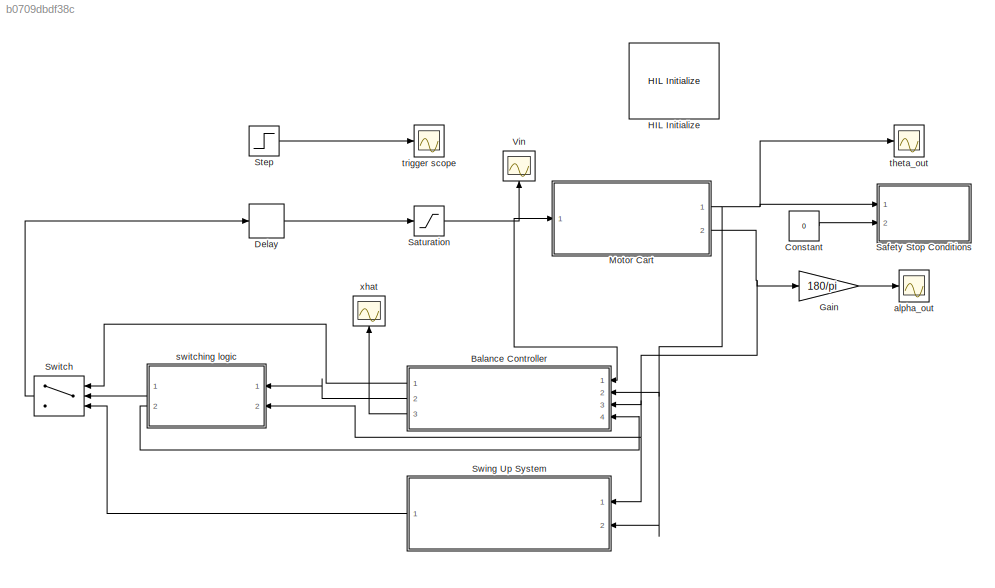
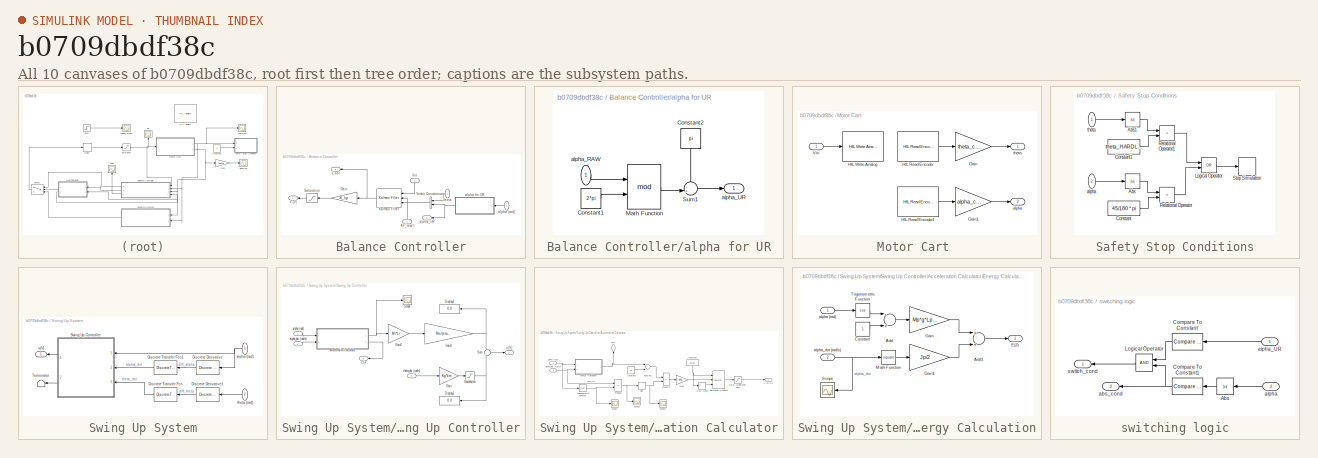
[diagram: thumbnail index - all 10 canvases of the model, root first then tree order]
MODEL slx_b0709dbdf38c
KIND model
CONFIG AbsTol = auto
CONFIG FixedStep = T
CONFIG MaxStep = auto
CONFIG MinStep = auto
CONFIG RelTol = 1e-3
CONFIG SampleTimeConstraint = Unconstrained
CONFIG Solver = FixedStepDiscrete
CONFIG SolverMode = Auto
CONFIG SolverName = FixedStepDiscrete
CONFIG StartTime = 0.0
CONFIG StopTime = tstop
BLOCK [SubSystem] Balance Controller
  Ports = [4, 3]
  RequestExecContextInheritance = off
  Variant = off
BLOCK [Gain] Balance Controller/Gain
  Gain = -K_lqr
  Multiplication = Matrix(K*u)
  OutDataTypeStr = Inherit: Inherit via internal rule
  ParamDataTypeStr = Inherit: Inherit via internal rule
  SaturateOnIntegerOverflow = off
BLOCK [Inport] Balance Controller/KF_reset 
  IconDisplay = Port number
  Port = 4
BLOCK [Reference] Balance Controller/Kalman Filter  REF=ctrlSharedLib/Kalman Filter
  Ports = [3, 1]
  SourceBlock = ctrlSharedLib/Kalman Filter
  SourceType = ctrlKalmanFilter
BLOCK [Saturate] Balance Controller/Saturation
  InputPortMap = u0
  LowerLimit = -Vin_HARDLIM
  Ports = [1, 1]
  UpperLimit = Vin_HARDLIM
BLOCK [Concatenate] Balance Controller/Vector Concatenate
  Ports = [2, 1]
BLOCK [Inport] Balance Controller/Vin
  IconDisplay = Port number
BLOCK [Inport] Balance Controller/alpha (rad)
  IconDisplay = Port number
  Port = 3
BLOCK [SubSystem] Balance Controller/alpha for UR
  Ports = [1, 1]
  RequestExecContextInheritance = off
  Variant = off
BLOCK [Constant] Balance Controller/alpha for UR/Constant1
  Value = 2*pi
BLOCK [Constant] Balance Controller/alpha for UR/Constant2
  Value = pi
BLOCK [Math] Balance Controller/alpha for UR/Math Function
  Operator = mod
  Ports = [2, 1]
BLOCK [Sum] Balance Controller/alpha for UR/Sum1
  IconShape = round
  InputSameDT = off
  Inputs = -+|
  OutDataTypeStr = Inherit: Inherit via internal rule
  Ports = [2, 1]
  SaturateOnIntegerOverflow = off
BLOCK [Inport] Balance Controller/alpha for UR/alpha_RAW
  IconDisplay = Port number
BLOCK [Outport] Balance Controller/alpha for UR/alpha_UR
  IconDisplay = Port number
BLOCK [Outport] Balance Controller/alpha_UR
  IconDisplay = Port number
  Port = 2
BLOCK [Inport] Balance Controller/theta
  IconDisplay = Port number
  Port = 2
BLOCK [Outport] Balance Controller/u (V)
  IconDisplay = Port number
BLOCK [Outport] Balance Controller/x_hat
  IconDisplay = Port number
  Port = 3
BLOCK [Constant] Constant
  Value = 0
BLOCK [Delay] Delay
  DelayLength = 1
  InitialCondition = 0
  InputPortMap = u0
  Ports = [1, 1]
BLOCK [Gain] Gain
  Gain = 180/pi
  OutDataTypeStr = Inherit: Inherit via internal rule
  ParamDataTypeStr = Inherit: Inherit via internal rule
  SaturateOnIntegerOverflow = off
BLOCK [Reference] HIL Initialize  REF=quarc_library/Data Acquisition/Generic/Configuration/HIL Initialize
  AttributesFormatString = %<object_name> (%<board_type>-%<board_number>)
  Ports = []
  SourceBlock = quarc_library/Data Acquisition/Generic/Configuration/HIL Initialize
  SourceType = HIL Initialize
  UserDataPersistent = on
BLOCK [SubSystem] Motor Cart 
  Ports = [1, 2]
  RequestExecContextInheritance = off
  Variant = off
BLOCK [Gain] Motor Cart /Gain
  Gain = theta_cal
  OutDataTypeStr = Inherit: Inherit via internal rule
  ParamDataTypeStr = Inherit: Inherit via internal rule
  SaturateOnIntegerOverflow = off
BLOCK [Gain] Motor Cart /Gain1
  Gain = alpha_cal
  OutDataTypeStr = Inherit: Inherit via internal rule
  ParamDataTypeStr = Inherit: Inherit via internal rule
  SaturateOnIntegerOverflow = off
BLOCK [Reference] Motor Cart /HIL Read Encoder  REF=quarc_library/Data Acquisition/Generic/Immediate I//O/HIL Read Encoder
  AttributesFormatString = (%<object_name>)
  Ports = [0, 1]
  SourceBlock = quarc_library/Data Acquisition/Generic/Immediate I//O/HIL Read Encoder
  SourceType = HIL Read Encoder
  UserDataPersistent = on
BLOCK [Reference] Motor Cart /HIL Read Encoder1  REF=quarc_library/Data Acquisition/Generic/Immediate I//O/HIL Read Encoder
  AttributesFormatString = (%<object_name>)
  Ports = [0, 1]
  SourceBlock = quarc_library/Data Acquisition/Generic/Immediate I//O/HIL Read Encoder
  SourceType = HIL Read Encoder
  UserDataPersistent = on
BLOCK [Reference] Motor Cart /HIL Write Analog  REF=quarc_library/Data Acquisition/Generic/Immediate I//O/HIL Write Analog
  AttributesFormatString = (%<object_name>)
  Ports = [1]
  SourceBlock = quarc_library/Data Acquisition/Generic/Immediate I//O/HIL Write Analog
  SourceType = HIL Write Analog
  UserDataPersistent = on
BLOCK [Inport] Motor Cart /Vin
  IconDisplay = Port number
BLOCK [Outport] Motor Cart /alpha
  IconDisplay = Port number
  Port = 2
BLOCK [Outport] Motor Cart /theta
  IconDisplay = Port number
BLOCK [SubSystem] Safety Stop Conditions
  Ports = [2]
  RequestExecContextInheritance = off
  Variant = off
BLOCK [Abs] Safety Stop Conditions/Abs
  SaturateOnIntegerOverflow = off
BLOCK [Abs] Safety Stop Conditions/Abs1
  SaturateOnIntegerOverflow = off
BLOCK [Constant] Safety Stop Conditions/Constant
  Value = 45/180 * pi
BLOCK [Constant] Safety Stop Conditions/Constant1
  Value = theta_HARDLIM
BLOCK [Logic] Safety Stop Conditions/Logical Operator
  AllPortsSameDT = off
  Operator = OR
  OutDataTypeStr = boolean
  Ports = [2, 1]
BLOCK [RelationalOperator] Safety Stop Conditions/Relational Operator
  InputSameDT = off
  Operator = >
  OutDataTypeStr = boolean
  Ports = [2, 1]
BLOCK [RelationalOperator] Safety Stop Conditions/Relational Operator1
  InputSameDT = off
  Operator = >
  OutDataTypeStr = boolean
  Ports = [2, 1]
BLOCK [Stop] Safety Stop Conditions/Stop Simulation
BLOCK [Inport] Safety Stop Conditions/alpha
  IconDisplay = Port number
  Port = 2
BLOCK [Inport] Safety Stop Conditions/theta
  IconDisplay = Port number
BLOCK [Saturate] Saturation
  InputPortMap = u0
  LowerLimit = -Vin_HARDLIM
  Ports = [1, 1]
  UpperLimit = Vin_HARDLIM
BLOCK [Step] Step
  SampleTime = 0
  Time = 0.001
BLOCK [SubSystem] Swing Up System
  Ports = [2, 1]
  RequestExecContextInheritance = off
  Variant = off
BLOCK [Reference] Swing Up System/Discrete Derivative  REF=simulink/Discrete/Discrete Derivative
  Ports = [1, 1]
  SourceBlock = simulink/Discrete/Discrete Derivative
  SourceType = Discrete Derivative
BLOCK [Reference] Swing Up System/Discrete Derivative1  REF=simulink/Discrete/Discrete Derivative
  Ports = [1, 1]
  SourceBlock = simulink/Discrete/Discrete Derivative
  SourceType = Discrete Derivative
BLOCK [DiscreteTransferFcn] Swing Up System/Discrete Transfer Fcn
  Denominator = denV
  InputPortMap = u0
  Numerator = numV
  Ports = [1, 1]
BLOCK [DiscreteTransferFcn] Swing Up System/Discrete Transfer Fcn1
  Denominator = denV
  InputPortMap = u0
  Numerator = numV
  Ports = [1, 1]
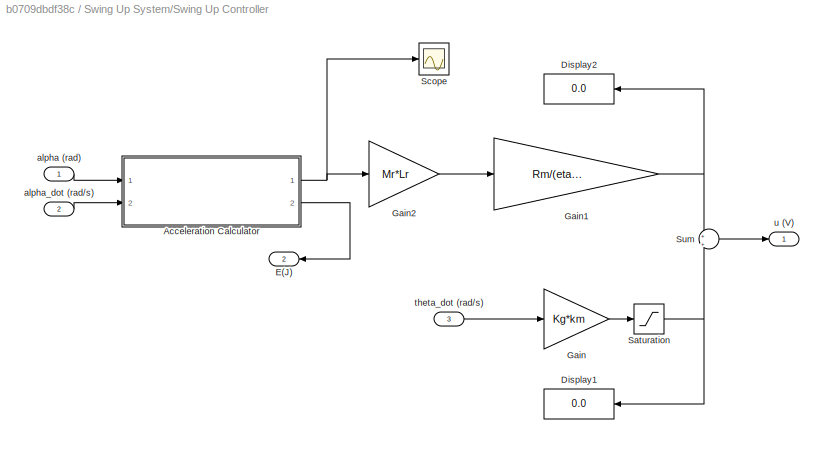
BLOCK [SubSystem] Swing Up System/Swing Up Controller
  Ports = [3, 2]
  RequestExecContextInheritance = off
  Variant = off
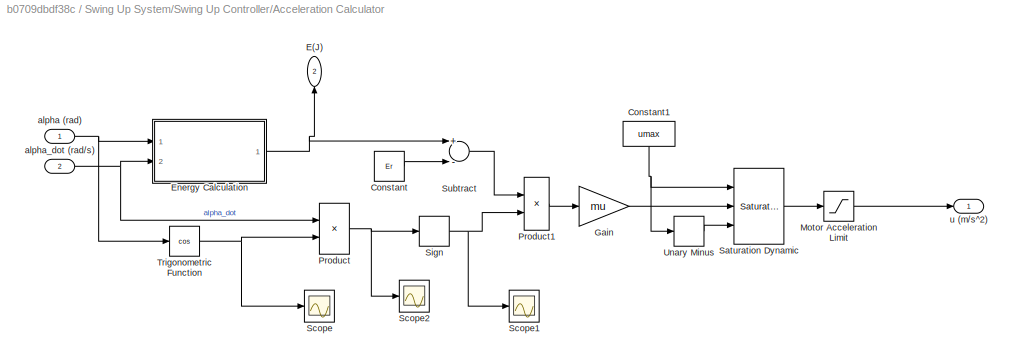
BLOCK [SubSystem] Swing Up System/Swing Up Controller/Acceleration Calculator
  Ports = [2, 2]
  RequestExecContextInheritance = off
  Variant = off
BLOCK [Constant] Swing Up System/Swing Up Controller/Acceleration Calculator/Constant
  Value = Er
BLOCK [Constant] Swing Up System/Swing Up Controller/Acceleration Calculator/Constant1
  Value = umax
BLOCK [Outport] Swing Up System/Swing Up Controller/Acceleration Calculator/E(J)
  IconDisplay = Port number
  Port = 2
BLOCK [SubSystem] Swing Up System/Swing Up Controller/Acceleration Calculator/Energy Calculation
  Ports = [2, 1]
  RequestExecContextInheritance = off
  Variant = off
BLOCK [Sum] Swing Up System/Swing Up Controller/Acceleration Calculator/Energy Calculation/Add
  InputSameDT = off
  Inputs = -+
  OutDataTypeStr = Inherit: Inherit via internal rule
  Ports = [2, 1]
  SaturateOnIntegerOverflow = off
BLOCK [Sum] Swing Up System/Swing Up Controller/Acceleration Calculator/Energy Calculation/Add1
  InputSameDT = off
  OutDataTypeStr = Inherit: Inherit via internal rule
  Ports = [2, 1]
  SaturateOnIntegerOverflow = off
BLOCK [Constant] Swing Up System/Swing Up Controller/Acceleration Calculator/Energy Calculation/Constant
BLOCK [Outport] Swing Up System/Swing Up Controller/Acceleration Calculator/Energy Calculation/E(J)
  IconDisplay = Port number
BLOCK [Gain] Swing Up System/Swing Up Controller/Acceleration Calculator/Energy Calculation/Gain
  Gain = Mp*g*Lp/2
  OutDataTypeStr = Inherit: Inherit via internal rule
  ParamDataTypeStr = Inherit: Inherit via internal rule
  SaturateOnIntegerOverflow = off
BLOCK [Gain] Swing Up System/Swing Up Controller/Acceleration Calculator/Energy Calculation/Gain1
  Gain = Jp/2
  OutDataTypeStr = Inherit: Inherit via internal rule
  ParamDataTypeStr = Inherit: Inherit via internal rule
  SaturateOnIntegerOverflow = off
BLOCK [Math] Swing Up System/Swing Up Controller/Acceleration Calculator/Energy Calculation/Math Function
  Operator = square
  Ports = [1, 1]
BLOCK [Scope] Swing Up System/Swing Up Controller/Acceleration Calculator/Energy Calculation/Scope
  Ports = [1]
  ScopeSpecificationString = Simulink.scopes.TimeScopeBlockCfg('CurrentConfiguration', extmgr.ConfigurationSet(extmgr.Configuration('Core','General UI',true),extmgr.Configuration('Core','Source UI',true),extmgr.Configuration('Sources','WiredSimulink',true,'DataLoggingVariableName','ScopeData1'),extmgr.Configuration('Visuals','Time Domain',true,'SerializedDisplays',{struct('MinYLimReal','-19.61012','MaxYLimReal','19.99545','YL...<+1399ch>
BLOCK [Trigonometry] Swing Up System/Swing Up Controller/Acceleration Calculator/Energy Calculation/Trigonometric Function
  ApproximationMethod = CORDIC
  Operator = cos
  Ports = [1, 1]
BLOCK [Inport] Swing Up System/Swing Up Controller/Acceleration Calculator/Energy Calculation/alpha (rad)
  IconDisplay = Port number
BLOCK [Inport] Swing Up System/Swing Up Controller/Acceleration Calculator/Energy Calculation/alpha_dot (rad//s)
  IconDisplay = Port number
  Port = 2
BLOCK [Gain] Swing Up System/Swing Up Controller/Acceleration Calculator/Gain
  Gain = mu
  OutDataTypeStr = Inherit: Inherit via internal rule
  ParamDataTypeStr = Inherit: Inherit via internal rule
  SaturateOnIntegerOverflow = off
BLOCK [Saturate] Swing Up System/Swing Up Controller/Acceleration Calculator/Motor Acceleration Limit
  InputPortMap = u0
  LowerLimit = -umax_LIM
  Ports = [1, 1]
  UpperLimit = umax_LIM
BLOCK [Product] Swing Up System/Swing Up Controller/Acceleration Calculator/Product
  InputSameDT = off
  OutDataTypeStr = Inherit: Inherit via internal rule
  Ports = [2, 1]
  RndMeth = Floor
  SaturateOnIntegerOverflow = off
BLOCK [Product] Swing Up System/Swing Up Controller/Acceleration Calculator/Product1
  InputSameDT = off
  OutDataTypeStr = Inherit: Inherit via internal rule
  Ports = [2, 1]
  RndMeth = Floor
  SaturateOnIntegerOverflow = off
BLOCK [Reference] Swing Up System/Swing Up Controller/Acceleration Calculator/Saturation Dynamic  REF=simulink/Discontinuities/Saturation
Dynamic
  Ports = [3, 1]
  SourceBlock = simulink/Discontinuities/Saturation\nDynamic
  SourceType = Saturation Dynamic
BLOCK [Scope] Swing Up System/Swing Up Controller/Acceleration Calculator/Scope
  Ports = [1]
  ScopeSpecificationString = Simulink.scopes.TimeScopeBlockCfg('CurrentConfiguration', extmgr.ConfigurationSet(extmgr.Configuration('Core','General UI',true),extmgr.Configuration('Core','Source UI',true),extmgr.Configuration('Sources','WiredSimulink',true,'DataLoggingVariableName','ScopeData5'),extmgr.Configuration('Visuals','Time Domain',true,'SerializedDisplays',{struct('MinYLimReal','-1.25','MaxYLimReal','1.25','YLabelReal...<+1418ch>
BLOCK [Scope] Swing Up System/Swing Up Controller/Acceleration Calculator/Scope1
  Ports = [1]
  ScopeSpecificationString = Simulink.scopes.TimeScopeBlockCfg('CurrentConfiguration', extmgr.ConfigurationSet(extmgr.Configuration('Core','General UI',true),extmgr.Configuration('Core','Source UI',true),extmgr.Configuration('Sources','WiredSimulink',true,'DataLoggingVariableName','ScopeData6'),extmgr.Configuration('Visuals','Time Domain',true,'SerializedDisplays',{struct('MinYLimReal','-1.25','MaxYLimReal','1.25','YLabelReal...<+1399ch>
BLOCK [Scope] Swing Up System/Swing Up Controller/Acceleration Calculator/Scope2
  Ports = [1]
  ScopeSpecificationString = Simulink.scopes.TimeScopeBlockCfg('CurrentConfiguration', extmgr.ConfigurationSet(extmgr.Configuration('Core','General UI',true),extmgr.Configuration('Core','Source UI',true),extmgr.Configuration('Sources','WiredSimulink',true,'DataLoggingVariableName','ScopeData7'),extmgr.Configuration('Visuals','Time Domain',true,'SerializedDisplays',{struct('MinYLimReal','-19.52325','MaxYLimReal','19.8692','YLa...<+1421ch>
BLOCK [Signum] Swing Up System/Swing Up Controller/Acceleration Calculator/Sign
BLOCK [Sum] Swing Up System/Swing Up Controller/Acceleration Calculator/Subtract
  InputSameDT = off
  Inputs = +-
  OutDataTypeStr = Inherit: Inherit via internal rule
  Ports = [2, 1]
  SaturateOnIntegerOverflow = off
BLOCK [Trigonometry] Swing Up System/Swing Up Controller/Acceleration Calculator/Trigonometric Function
  Operator = cos
  Ports = [1, 1]
BLOCK [UnaryMinus] Swing Up System/Swing Up Controller/Acceleration Calculator/Unary Minus
BLOCK [Inport] Swing Up System/Swing Up Controller/Acceleration Calculator/alpha (rad)
  IconDisplay = Port number
BLOCK [Inport] Swing Up System/Swing Up Controller/Acceleration Calculator/alpha_dot (rad//s)
  IconDisplay = Port number
  Port = 2
BLOCK [Outport] Swing Up System/Swing Up Controller/Acceleration Calculator/u (m//s^2)
  IconDisplay = Port number
BLOCK [Display] Swing Up System/Swing Up Controller/Display1
  Decimation = 1
  Ports = [1]
BLOCK [Display] Swing Up System/Swing Up Controller/Display2
  Decimation = 1
  Ports = [1]
BLOCK [Outport] Swing Up System/Swing Up Controller/E(J)
  IconDisplay = Port number
  Port = 2
BLOCK [Gain] Swing Up System/Swing Up Controller/Gain
  Gain = Kg*km
  OutDataTypeStr = Inherit: Inherit via internal rule
  ParamDataTypeStr = Inherit: Inherit via internal rule
  SaturateOnIntegerOverflow = off
BLOCK [Gain] Swing Up System/Swing Up Controller/Gain1
  Gain = Rm/(eta_g * Kg * eta_m * kt)
  OutDataTypeStr = Inherit: Inherit via internal rule
  ParamDataTypeStr = Inherit: Inherit via internal rule
  SaturateOnIntegerOverflow = off
BLOCK [Gain] Swing Up System/Swing Up Controller/Gain2
  Gain = Mr*Lr
  OutDataTypeStr = Inherit: Inherit via internal rule
  ParamDataTypeStr = Inherit: Inherit via internal rule
  SaturateOnIntegerOverflow = off
BLOCK [Saturate] Swing Up System/Swing Up Controller/Saturation
  InputPortMap = u0
  LowerLimit = -bemf_lim
  Ports = [1, 1]
  UpperLimit = bemf_lim
BLOCK [Scope] Swing Up System/Swing Up Controller/Scope
  Ports = [1]
  ScopeSpecificationString = Simulink.scopes.TimeScopeBlockCfg('CurrentConfiguration', extmgr.ConfigurationSet(extmgr.Configuration('Core','General UI',true),extmgr.Configuration('Core','Source UI',true),extmgr.Configuration('Sources','WiredSimulink',true,'DataLoggingVariableName','ScopeData4'),extmgr.Configuration('Visuals','Time Domain',true,'SerializedDisplays',{struct('MinYLimReal','-3.11709','MaxYLimReal','2.85389','YLab...<+1437ch>
BLOCK [Sum] Swing Up System/Swing Up Controller/Sum
  IconShape = round
  InputSameDT = off
  Inputs = +|+
  OutDataTypeStr = Inherit: Inherit via internal rule
  Ports = [2, 1]
  SaturateOnIntegerOverflow = off
BLOCK [Inport] Swing Up System/Swing Up Controller/alpha (rad)
  IconDisplay = Port number
BLOCK [Inport] Swing Up System/Swing Up Controller/alpha_dot (rad//s)
  IconDisplay = Port number
  Port = 2
BLOCK [Inport] Swing Up System/Swing Up Controller/theta_dot (rad//s)
  IconDisplay = Port number
  Port = 3
BLOCK [Outport] Swing Up System/Swing Up Controller/u (V)
  IconDisplay = Port number
BLOCK [Terminator] Swing Up System/Terminator
BLOCK [Inport] Swing Up System/alpha (rad)
  IconDisplay = Port number
BLOCK [Inport] Swing Up System/theta (rad)
  IconDisplay = Port number
  Port = 2
BLOCK [Outport] Swing Up System/u(V)
  IconDisplay = Port number
BLOCK [Switch] Switch
  Criteria = u2 ~= 0
  InputSameDT = off
  SaturateOnIntegerOverflow = off
  Threshold = 15/180 * pi
BLOCK [Scope] Vin
  Ports = [1]
  ScopeSpecificationString = Simulink.scopes.TimeScopeBlockCfg('CurrentConfiguration', extmgr.ConfigurationSet(extmgr.Configuration('Core','General UI',true),extmgr.Configuration('Core','Source UI',true),extmgr.Configuration('Sources','WiredSimulink',true,'DataLoggingVariableName','Vin','DataLogging',true,'DataLoggingSaveFormat','Array'),extmgr.Configuration('Visuals','Time Domain',true,'SerializedDisplays',{struct('MinYLimRe...<+1513ch>
BLOCK [Scope] alpha_out 
  Ports = [1]
  ScopeSpecificationString = Simulink.scopes.TimeScopeBlockCfg('CurrentConfiguration', extmgr.ConfigurationSet(extmgr.Configuration('Core','General UI',true),extmgr.Configuration('Core','Source UI',true),extmgr.Configuration('Sources','WiredSimulink',true,'DataLoggingVariableName','alpha_out','DataLogging',true,'DataLoggingSaveFormat','Array'),extmgr.Configuration('Visuals','Time Domain',true,'SerializedDisplays',{struct('Min...<+1500ch>
BLOCK [SubSystem] switching logic
  Ports = [2, 2]
  RequestExecContextInheritance = off
  Variant = off
BLOCK [Abs] switching logic/Abs
  SaturateOnIntegerOverflow = off
BLOCK [Reference] switching logic/Compare To Constant  REF=simulink/Logic and Bit
Operations/Compare
To Constant
  Ports = [1, 1]
  SourceBlock = simulink/Logic and Bit\nOperations/Compare\nTo Constant
  SourceType = Compare To Constant
BLOCK [Reference] switching logic/Compare To Constant1  REF=simulink/Logic and Bit
Operations/Compare
To Constant
  Ports = [1, 1]
  SourceBlock = simulink/Logic and Bit\nOperations/Compare\nTo Constant
  SourceType = Compare To Constant
BLOCK [Logic] switching logic/Logical Operator
  AllPortsSameDT = off
  OutDataTypeStr = boolean
  Ports = [2, 1]
BLOCK [Outport] switching logic/abs_cond
  IconDisplay = Port number
  Port = 2
BLOCK [Inport] switching logic/alpha
  IconDisplay = Port number
  Port = 2
BLOCK [Inport] switching logic/alpha_UR
  IconDisplay = Port number
BLOCK [Outport] switching logic/switch_cond
  IconDisplay = Port number
BLOCK [Scope] theta_out
  Ports = [1]
  ScopeSpecificationString = Simulink.scopes.TimeScopeBlockCfg('CurrentConfiguration', extmgr.ConfigurationSet(extmgr.Configuration('Core','General UI',true),extmgr.Configuration('Core','Source UI',true),extmgr.Configuration('Sources','WiredSimulink',true,'DataLoggingVariableName','theta_out','DataLogging',true,'DataLoggingSaveFormat','Array'),extmgr.Configuration('Visuals','Time Domain',true,'SerializedDisplays',{struct('Min...<+1495ch>
BLOCK [Scope] trigger scope
  ExtModeLoggingTrig = on
  Ports = [1]
  ScopeSpecificationString = Simulink.scopes.TimeScopeBlockCfg('CurrentConfiguration', extmgr.ConfigurationSet(extmgr.Configuration('Core','General UI',true),extmgr.Configuration('Core','Source UI',true),extmgr.Configuration('Sources','WiredSimulink',true,'DataLogging',true,'DataLoggingSaveFormat','Array'),extmgr.Configuration('Visuals','Time Domain',true,'SerializedDisplays',{struct('MinYLimReal','0.9','MaxYLimReal','1.1','Y...<+1341ch>
BLOCK [Scope] xhat
  Ports = [1]
  ScopeSpecificationString = Simulink.scopes.TimeScopeBlockCfg('CurrentConfiguration', extmgr.ConfigurationSet(extmgr.Configuration('Core','General UI',true),extmgr.Configuration('Core','Source UI',true),extmgr.Configuration('Sources','WiredSimulink',true,'DataLoggingVariableName','ScopeData2','DataLogging',true,'DataLoggingSaveFormat','Array'),extmgr.Configuration('Visuals','Time Domain',true,'SerializedDisplays',{struct('Mi...<+1613ch>
LINE Balance Controller/Gain:1 -> Balance Controller/Saturation:1
LINE Balance Controller/KF_reset :1 -> Balance Controller/Kalman Filter:3
NET Balance Controller/Kalman Filter:1 -> Balance Controller/Gain:1, Balance Controller/x_hat:1
LINE Balance Controller/Saturation:1 -> Balance Controller/u (V):1
LINE Balance Controller/Vector Concatenate:1 -> Balance Controller/Kalman Filter:2
LINE Balance Controller/Vin:1 -> Balance Controller/Kalman Filter:1
LINE Balance Controller/alpha (rad):1 -> Balance Controller/alpha for UR:1
LINE Balance Controller/alpha for UR/Constant1:1 -> Balance Controller/alpha for UR/Math Function:2
LINE Balance Controller/alpha for UR/Constant2:1 -> Balance Controller/alpha for UR/Sum1:1
LINE Balance Controller/alpha for UR/Math Function:1 -> Balance Controller/alpha for UR/Sum1:2
LINE Balance Controller/alpha for UR/Sum1:1 -> Balance Controller/alpha for UR/alpha_UR:1
LINE Balance Controller/alpha for UR/alpha_RAW:1 -> Balance Controller/alpha for UR/Math Function:1
NET Balance Controller/alpha for UR:1 -> Balance Controller/Vector Concatenate:2, Balance Controller/alpha_UR:1
LINE Balance Controller/theta:1 -> Balance Controller/Vector Concatenate:1
LINE Balance Controller:1 -> Switch:1
LINE Balance Controller:2 -> switching logic:1
LINE Balance Controller:3 -> xhat:1
LINE Constant:1 -> Safety Stop Conditions:2
LINE Delay:1 -> Saturation:1
LINE Gain:1 -> alpha_out :1
LINE Motor Cart /Gain1:1 -> Motor Cart /alpha:1
LINE Motor Cart /Gain:1 -> Motor Cart /theta:1
LINE Motor Cart /HIL Read Encoder1:1 -> Motor Cart /Gain1:1
LINE Motor Cart /HIL Read Encoder:1 -> Motor Cart /Gain:1
LINE Motor Cart /Vin:1 -> Motor Cart /HIL Write Analog:1
NET Motor Cart :1 -> Balance Controller:2, Safety Stop Conditions:1, Swing Up System:2, theta_out:1
NET Motor Cart :2 -> Balance Controller:3, Gain:1, Swing Up System:1, switching logic:2
LINE Safety Stop Conditions/Abs1:1 -> Safety Stop Conditions/Relational Operator1:1
LINE Safety Stop Conditions/Abs:1 -> Safety Stop Conditions/Relational Operator:1
LINE Safety Stop Conditions/Constant1:1 -> Safety Stop Conditions/Relational Operator1:2
LINE Safety Stop Conditions/Constant:1 -> Safety Stop Conditions/Relational Operator:2
LINE Safety Stop Conditions/Logical Operator:1 -> Safety Stop Conditions/Stop Simulation:1
LINE Safety Stop Conditions/Relational Operator1:1 -> Safety Stop Conditions/Logical Operator:1
LINE Safety Stop Conditions/Relational Operator:1 -> Safety Stop Conditions/Logical Operator:2
LINE Safety Stop Conditions/alpha:1 -> Safety Stop Conditions/Abs:1
LINE Safety Stop Conditions/theta:1 -> Safety Stop Conditions/Abs1:1
NET Saturation:1 -> Balance Controller:1, Motor Cart :1, Vin:1
LINE Step:1 -> trigger scope:1
LINE Swing Up System/Discrete Derivative1:1 -> Swing Up System/Discrete Transfer Fcn:1
LINE Swing Up System/Discrete Derivative:1 -> Swing Up System/Discrete Transfer Fcn1:1
LINE Swing Up System/Discrete Transfer Fcn1:1 -> Swing Up System/Swing Up Controller:2
LINE Swing Up System/Discrete Transfer Fcn:1 -> Swing Up System/Swing Up Controller:3
NET Swing Up System/Swing Up Controller/Acceleration Calculator/Constant1:1 -> Swing Up System/Swing Up Controller/Acceleration Calculator/Saturation Dynamic:1, Swing Up System/Swing Up Controller/Acceleration Calculator/Unary Minus:1
LINE Swing Up System/Swing Up Controller/Acceleration Calculator/Constant:1 -> Swing Up System/Swing Up Controller/Acceleration Calculator/Subtract:2
LINE Swing Up System/Swing Up Controller/Acceleration Calculator/Energy Calculation/Add1:1 -> Swing Up System/Swing Up Controller/Acceleration Calculator/Energy Calculation/E(J):1
LINE Swing Up System/Swing Up Controller/Acceleration Calculator/Energy Calculation/Add:1 -> Swing Up System/Swing Up Controller/Acceleration Calculator/Energy Calculation/Gain:1
LINE Swing Up System/Swing Up Controller/Acceleration Calculator/Energy Calculation/Constant:1 -> Swing Up System/Swing Up Controller/Acceleration Calculator/Energy Calculation/Add:2
LINE Swing Up System/Swing Up Controller/Acceleration Calculator/Energy Calculation/Gain1:1 -> Swing Up System/Swing Up Controller/Acceleration Calculator/Energy Calculation/Add1:2
LINE Swing Up System/Swing Up Controller/Acceleration Calculator/Energy Calculation/Gain:1 -> Swing Up System/Swing Up Controller/Acceleration Calculator/Energy Calculation/Add1:1
LINE Swing Up System/Swing Up Controller/Acceleration Calculator/Energy Calculation/Math Function:1 -> Swing Up System/Swing Up Controller/Acceleration Calculator/Energy Calculation/Gain1:1
LINE Swing Up System/Swing Up Controller/Acceleration Calculator/Energy Calculation/Trigonometric Function:1 -> Swing Up System/Swing Up Controller/Acceleration Calculator/Energy Calculation/Add:1
LINE Swing Up System/Swing Up Controller/Acceleration Calculator/Energy Calculation/alpha (rad):1 -> Swing Up System/Swing Up Controller/Acceleration Calculator/Energy Calculation/Trigonometric Function:1
NET Swing Up System/Swing Up Controller/Acceleration Calculator/Energy Calculation/alpha_dot (rad//s):1 -> Swing Up System/Swing Up Controller/Acceleration Calculator/Energy Calculation/Math Function:1, Swing Up System/Swing Up Controller/Acceleration Calculator/Energy Calculation/Scope:1
NET Swing Up System/Swing Up Controller/Acceleration Calculator/Energy Calculation:1 -> Swing Up System/Swing Up Controller/Acceleration Calculator/E(J):1, Swing Up System/Swing Up Controller/Acceleration Calculator/Subtract:1
LINE Swing Up System/Swing Up Controller/Acceleration Calculator/Gain:1 -> Swing Up System/Swing Up Controller/Acceleration Calculator/Saturation Dynamic:2
LINE Swing Up System/Swing Up Controller/Acceleration Calculator/Motor Acceleration Limit:1 -> Swing Up System/Swing Up Controller/Acceleration Calculator/u (m//s^2):1
LINE Swing Up System/Swing Up Controller/Acceleration Calculator/Product1:1 -> Swing Up System/Swing Up Controller/Acceleration Calculator/Gain:1
NET Swing Up System/Swing Up Controller/Acceleration Calculator/Product:1 -> Swing Up System/Swing Up Controller/Acceleration Calculator/Scope2:1, Swing Up System/Swing Up Controller/Acceleration Calculator/Sign:1
LINE Swing Up System/Swing Up Controller/Acceleration Calculator/Saturation Dynamic:1 -> Swing Up System/Swing Up Controller/Acceleration Calculator/Motor Acceleration Limit:1
NET Swing Up System/Swing Up Controller/Acceleration Calculator/Sign:1 -> Swing Up System/Swing Up Controller/Acceleration Calculator/Product1:2, Swing Up System/Swing Up Controller/Acceleration Calculator/Scope1:1
LINE Swing Up System/Swing Up Controller/Acceleration Calculator/Subtract:1 -> Swing Up System/Swing Up Controller/Acceleration Calculator/Product1:1
NET Swing Up System/Swing Up Controller/Acceleration Calculator/Trigonometric Function:1 -> Swing Up System/Swing Up Controller/Acceleration Calculator/Product:2, Swing Up System/Swing Up Controller/Acceleration Calculator/Scope:1
LINE Swing Up System/Swing Up Controller/Acceleration Calculator/Unary Minus:1 -> Swing Up System/Swing Up Controller/Acceleration Calculator/Saturation Dynamic:3
NET Swing Up System/Swing Up Controller/Acceleration Calculator/alpha (rad):1 -> Swing Up System/Swing Up Controller/Acceleration Calculator/Energy Calculation:1, Swing Up System/Swing Up Controller/Acceleration Calculator/Trigonometric Function:1
NET Swing Up System/Swing Up Controller/Acceleration Calculator/alpha_dot (rad//s):1 -> Swing Up System/Swing Up Controller/Acceleration Calculator/Energy Calculation:2, Swing Up System/Swing Up Controller/Acceleration Calculator/Product:1
NET Swing Up System/Swing Up Controller/Acceleration Calculator:1 -> Swing Up System/Swing Up Controller/Gain2:1, Swing Up System/Swing Up Controller/Scope:1
LINE Swing Up System/Swing Up Controller/Acceleration Calculator:2 -> Swing Up System/Swing Up Controller/E(J):1
NET Swing Up System/Swing Up Controller/Gain1:1 -> Swing Up System/Swing Up Controller/Display2:1, Swing Up System/Swing Up Controller/Sum:1
LINE Swing Up System/Swing Up Controller/Gain2:1 -> Swing Up System/Swing Up Controller/Gain1:1
LINE Swing Up System/Swing Up Controller/Gain:1 -> Swing Up System/Swing Up Controller/Saturation:1
NET Swing Up System/Swing Up Controller/Saturation:1 -> Swing Up System/Swing Up Controller/Display1:1, Swing Up System/Swing Up Controller/Sum:2
LINE Swing Up System/Swing Up Controller/Sum:1 -> Swing Up System/Swing Up Controller/u (V):1
LINE Swing Up System/Swing Up Controller/alpha (rad):1 -> Swing Up System/Swing Up Controller/Acceleration Calculator:1
LINE Swing Up System/Swing Up Controller/alpha_dot (rad//s):1 -> Swing Up System/Swing Up Controller/Acceleration Calculator:2
LINE Swing Up System/Swing Up Controller/theta_dot (rad//s):1 -> Swing Up System/Swing Up Controller/Gain:1
LINE Swing Up System/Swing Up Controller:1 -> Swing Up System/u(V):1
LINE Swing Up System/Swing Up Controller:2 -> Swing Up System/Terminator:1
NET Swing Up System/alpha (rad):1 -> Swing Up System/Discrete Derivative:1, Swing Up System/Swing Up Controller:1
LINE Swing Up System/theta (rad):1 -> Swing Up System/Discrete Derivative1:1
LINE Swing Up System:1 -> Switch:3
LINE Switch:1 -> Delay:1
LINE switching logic/Abs:1 -> switching logic/Compare To Constant1:1
NET switching logic/Compare To Constant1:1 -> switching logic/Logical Operator:2, switching logic/abs_cond:1
LINE switching logic/Compare To Constant:1 -> switching logic/Logical Operator:1
LINE switching logic/Logical Operator:1 -> switching logic/switch_cond:1
LINE switching logic/alpha:1 -> switching logic/Abs:1
LINE switching logic/alpha_UR:1 -> switching logic/Compare To Constant:1
LINE switching logic:1 -> Switch:2
LINE switching logic:2 -> Balance Controller:4
note: NET lines group one-source signal fan-out (src -> all destinations, sorted); 1:1 wires keep LINE
